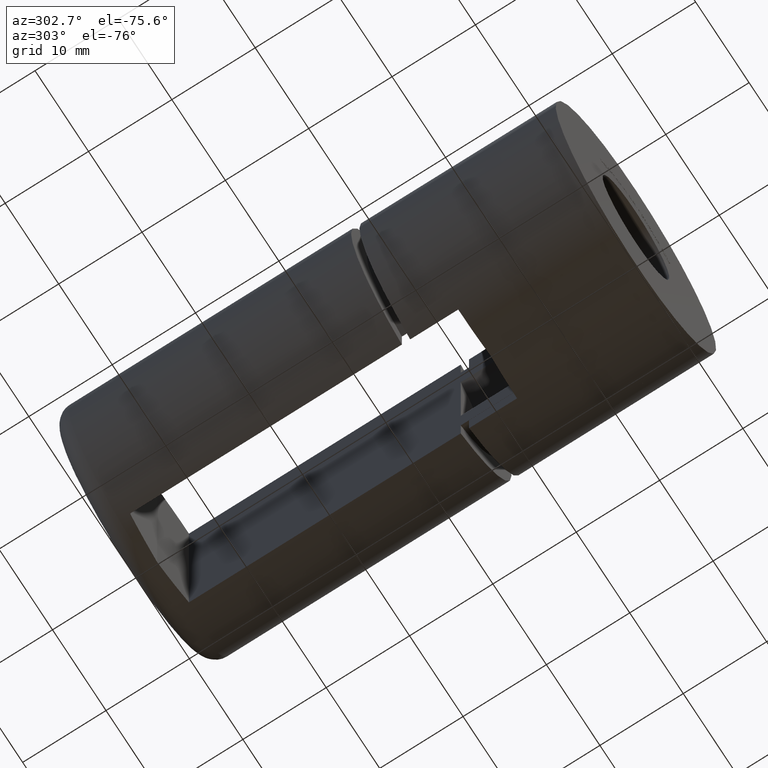
[diagram: clean part render]
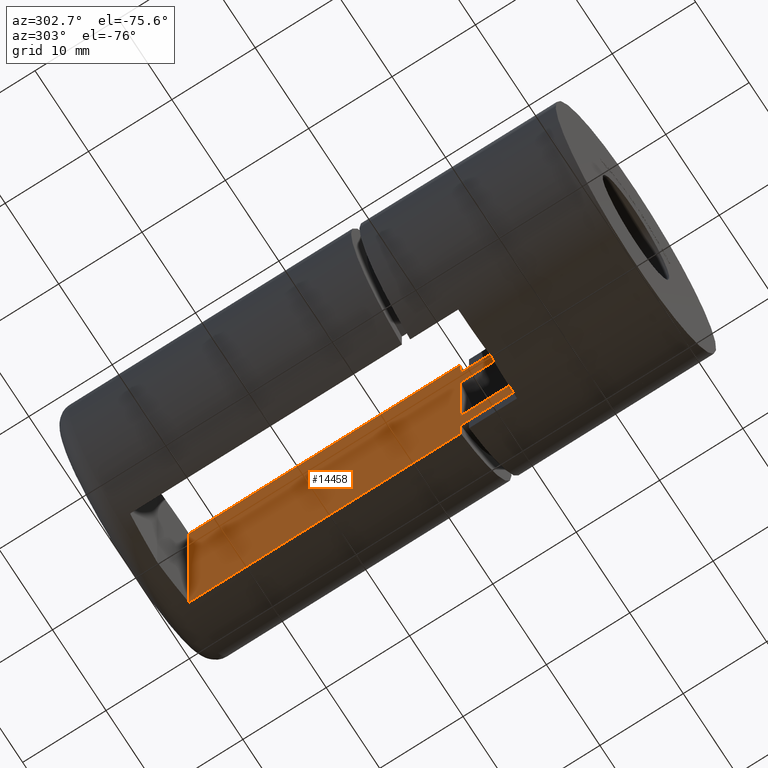
[diagram: same view with one face highlighted and labeled with its STEP entity id]
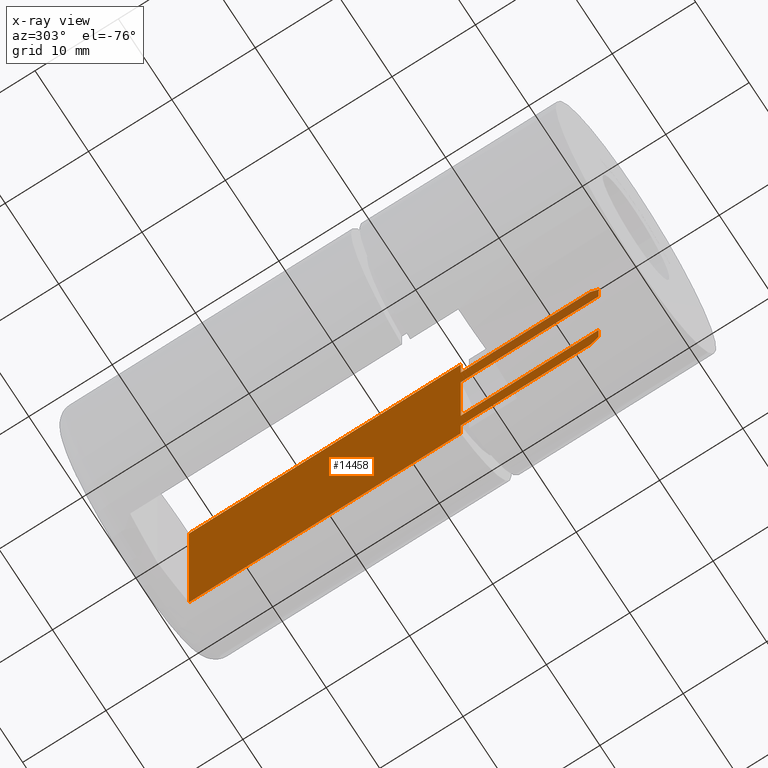
[diagram: x-ray of the same camera — body ghosted, the highlighted face saturated]
A machine part, auxiliary view. The second image highlights one B-rep face of the part: STEP entity #14458.
The next image is the same camera in x-ray: the body ghosted, the highlighted face saturated — about 5% of this face is hidden behind the body in this view.
In plain terms, the highlighted planar face has unit normal (1, 0, 0).
Its self-contained STEP definition (entity closure, byte-faithful):
#193 = EDGE_CURVE ( 'NONE', #15878, #3557, #1396, .T. ) ;
#316 = CARTESIAN_POINT ( 'NONE',  ( 5.500000000000000900, 52.94999999999998200, 10.72159036710506000 ) ) ;
#364 = ORIENTED_EDGE ( 'NONE', *, *, #16879, .T. ) ;
#634 = CARTESIAN_POINT ( 'NONE',  ( 5.500000000000000900, 12.65126265847082400, 6.805328794408102200 ) ) ;
#765 = CARTESIAN_POINT ( 'NONE',  ( 5.500000000000001800, 37.39999999999999900, -13.95528573695286300 ) ) ;
#824 = VECTOR ( 'NONE', #13019, 1000.000000000000000 ) ;
#977 = VECTOR ( 'NONE', #14602, 1000.000000000000000 ) ;
#1170 = EDGE_CURVE ( 'NONE', #2055, #12590, #11807, .T. ) ;
#1317 = AXIS2_PLACEMENT_3D ( 'NONE', #3475, #13930, #3239 ) ;
#1396 = LINE ( 'NONE', #9320, #977 ) ;
#1426 = CARTESIAN_POINT ( 'NONE',  ( 5.500000000000000000, 53.94999999999999600, -6.360652745248293000E-016 ) ) ;
#1438 = LINE ( 'NONE', #14080, #6279 ) ;
#1523 = CARTESIAN_POINT ( 'NONE',  ( 5.500000000000000900, 53.94999999999999600, 9.583970993278297700 ) ) ;
#1540 = DIRECTION ( 'NONE',  ( -0.0000000000000000000, -0.0000000000000000000, 1.000000000000000000 ) ) ;
#1621 = CARTESIAN_POINT ( 'NONE',  ( 5.500000000000001800, 37.39999999999999900, 13.95528573695286500 ) ) ;
#1640 = EDGE_CURVE ( 'NONE', #4953, #3020, #10446, .T. ) ;
#1713 = EDGE_LOOP ( 'NONE', ( #15666, #11776, #5054, #11476, #8399, #4805, #10479, #5165, #5842, #4507, #5970, #364, #10589, #1958 ) ) ;
#1765 = CARTESIAN_POINT ( 'NONE',  ( 5.500000000000000900, 53.94999999999999600, 6.805328794408102200 ) ) ;
#1767 = CARTESIAN_POINT ( 'NONE',  ( 5.500000000000000900, 53.94999999999999600, 9.583970993278297700 ) ) ;
#1891 = DIRECTION ( 'NONE',  ( -1.156482317317871500E-016, 0.0000000000000000000, -1.000000000000000000 ) ) ;
#1954 = DIRECTION ( 'NONE',  ( 0.0000000000000000000, -1.000000000000000000, 0.0000000000000000000 ) ) ;
#1958 = ORIENTED_EDGE ( 'NONE', *, *, #16105, .T. ) ;
#2055 = VERTEX_POINT ( 'NONE', #12382 ) ;
#2137 = EDGE_CURVE ( 'NONE', #4626, #5070, #15040, .T. ) ;
#2786 = CARTESIAN_POINT ( 'NONE',  ( 5.500000000000001800, 37.39999999999999900, -13.95528573695286300 ) ) ;
#2815 = EDGE_CURVE ( 'NONE', #8902, #12512, #15235, .T. ) ;
#2969 = CARTESIAN_POINT ( 'NONE',  ( 5.500000000000001800, 37.39999999999999900, -15.00000000000000000 ) ) ;
#3020 = VERTEX_POINT ( 'NONE', #10277 ) ;
#3239 = DIRECTION ( 'NONE',  ( -1.156482317317871500E-016, 0.0000000000000000000, -1.000000000000000000 ) ) ;
#3475 = CARTESIAN_POINT ( 'NONE',  ( 5.499999999999996400, -23.60000000000000900, -30.00000000000000400 ) ) ;
#3557 = VERTEX_POINT ( 'NONE', #12785 ) ;
#3605 = DIRECTION ( 'NONE',  ( -0.0000000000000000000, 1.000000000000000000, -0.0000000000000000000 ) ) ;
#4392 = DIRECTION ( 'NONE',  ( 1.156482317317871500E-016, -0.0000000000000000000, 1.000000000000000000 ) ) ;
#4507 = ORIENTED_EDGE ( 'NONE', *, *, #16001, .F. ) ;
#4542 = LINE ( 'NONE', #2969, #8314 ) ;
#4626 = VERTEX_POINT ( 'NONE', #14476 ) ;
#4805 = ORIENTED_EDGE ( 'NONE', *, *, #14190, .F. ) ;
#4953 = VERTEX_POINT ( 'NONE', #15378 ) ;
#5054 = ORIENTED_EDGE ( 'NONE', *, *, #1170, .T. ) ;
#5062 = LINE ( 'NONE', #15942, #5707 ) ;
#5070 = VERTEX_POINT ( 'NONE', #12144 ) ;
#5165 = ORIENTED_EDGE ( 'NONE', *, *, #2137, .T. ) ;
#5505 = DIRECTION ( 'NONE',  ( -0.0000000000000000000, -1.000000000000000000, -0.0000000000000000000 ) ) ;
#5707 = VECTOR ( 'NONE', #5505, 1000.000000000000000 ) ;
#5842 = ORIENTED_EDGE ( 'NONE', *, *, #15008, .F. ) ;
#5970 = ORIENTED_EDGE ( 'NONE', *, *, #1640, .F. ) ;
#6024 = VERTEX_POINT ( 'NONE', #2786 ) ;
#6186 = CARTESIAN_POINT ( 'NONE',  ( 5.500000000000000000, 53.94999999999999600, -6.360652745248293000E-016 ) ) ;
#6279 = VECTOR ( 'NONE', #3605, 1000.000000000000000 ) ;
#6548 = FACE_OUTER_BOUND ( 'NONE', #1713, .T. ) ;
#6628 = VERTEX_POINT ( 'NONE', #1523 ) ;
#6644 = CARTESIAN_POINT ( 'NONE',  ( 5.500000000000001800, 37.39999999999999900, -10.72159036710506200 ) ) ;
#6769 = CARTESIAN_POINT ( 'NONE',  ( 5.500000000000001800, 37.39999999999999900, -15.00000000000000000 ) ) ;
#6928 = VECTOR ( 'NONE', #16685, 1000.000000000000000 ) ;
#7164 = LINE ( 'NONE', #6769, #7591 ) ;
#7504 = CARTESIAN_POINT ( 'NONE',  ( 5.500000000000000900, 53.94999999999999600, 10.72159036710506000 ) ) ;
#7591 = VECTOR ( 'NONE', #1540, 1000.000000000000000 ) ;
#7614 = LINE ( 'NONE', #6186, #10085 ) ;
#7858 = VECTOR ( 'NONE', #8555, 1000.000000000000000 ) ;
#8314 = VECTOR ( 'NONE', #16356, 1000.000000000000000 ) ;
#8389 = CARTESIAN_POINT ( 'NONE',  ( 5.499999999999996400, 37.39999999999999900, -30.00000000000000400 ) ) ;
#8399 = ORIENTED_EDGE ( 'NONE', *, *, #193, .F. ) ;
#8555 = DIRECTION ( 'NONE',  ( -1.156482317317871500E-016, 0.0000000000000000000, -1.000000000000000000 ) ) ;
#8812 = VERTEX_POINT ( 'NONE', #1621 ) ;
#8902 = VERTEX_POINT ( 'NONE', #14930 ) ;
#8934 = VERTEX_POINT ( 'NONE', #1765 ) ;
#9320 = CARTESIAN_POINT ( 'NONE',  ( 5.499999999999999100, 53.94999999999999600, -10.72159036710506000 ) ) ;
#9762 = CARTESIAN_POINT ( 'NONE',  ( 5.500000000000000900, 53.61918428849094200, 9.965390512884408000 ) ) ;
#10085 = VECTOR ( 'NONE', #1891, 1000.000000000000000 ) ;
#10098 = DIRECTION ( 'NONE',  ( 0.0000000000000000000, 1.000000000000000000, 0.0000000000000000000 ) ) ;
#10277 = CARTESIAN_POINT ( 'NONE',  ( 5.500000000000001800, 37.39999999999999900, 10.72159036710506200 ) ) ;
#10328 = CARTESIAN_POINT ( 'NONE',  ( 5.500000000000005300, 4.788242786056748000, -15.00000000000000000 ) ) ;
#10446 = LINE ( 'NONE', #7504, #6928 ) ;
#10479 = ORIENTED_EDGE ( 'NONE', *, *, #15114, .F. ) ;
#10589 = ORIENTED_EDGE ( 'NONE', *, *, #14325, .T. ) ;
#11476 = ORIENTED_EDGE ( 'NONE', *, *, #16224, .T. ) ;
#11478 = PLANE ( 'NONE',  #1317 ) ;
#11545 = LINE ( 'NONE', #765, #15537 ) ;
#11776 = ORIENTED_EDGE ( 'NONE', *, *, #12374, .T. ) ;
#11807 = LINE ( 'NONE', #1426, #7858 ) ;
#12144 = CARTESIAN_POINT ( 'NONE',  ( 5.500000000000005300, 4.788242786056748000, 13.95528573695285800 ) ) ;
#12374 = EDGE_CURVE ( 'NONE', #8902, #2055, #1438, .T. ) ;
#12382 = CARTESIAN_POINT ( 'NONE',  ( 5.499999999999999100, 53.94999999999999600, -6.805328794408104000 ) ) ;
#12512 = VERTEX_POINT ( 'NONE', #15917 ) ;
#12590 = VERTEX_POINT ( 'NONE', #14531 ) ;
#12785 = CARTESIAN_POINT ( 'NONE',  ( 5.499999999999999100, 52.94999999999998200, -10.72159036710506000 ) ) ;
#12983 = VECTOR ( 'NONE', #1954, 1000.000000000000000 ) ;
#13019 = DIRECTION ( 'NONE',  ( -0.0000000000000000000, -0.0000000000000000000, 1.000000000000000000 ) ) ;
#13134 = CARTESIAN_POINT ( 'NONE',  ( 5.499999999999999100, 53.61918428849094200, -9.965390512884408000 ) ) ;
#13930 = DIRECTION ( 'NONE',  ( 1.000000000000000000, 0.0000000000000000000, -1.156482317317871500E-016 ) ) ;
#13970 = B_SPLINE_CURVE_WITH_KNOTS ( 'NONE', 3,
 ( #17168, #13134, #14430, #15819 ),
 .UNSPECIFIED., .F., .F.,
 ( 4, 4 ),
 ( 1.734723475976807100E-018, 0.001514654363115894800 ),
 .UNSPECIFIED. ) ;
#14080 = CARTESIAN_POINT ( 'NONE',  ( 5.499999999999999100, 12.65126265847082400, -6.805328794408104000 ) ) ;
#14190 = EDGE_CURVE ( 'NONE', #6024, #15878, #4542, .T. ) ;
#14325 = EDGE_CURVE ( 'NONE', #6628, #8934, #7614, .T. ) ;
#14430 = CARTESIAN_POINT ( 'NONE',  ( 5.499999999999999100, 53.28561648060672000, -10.34439086098336200 ) ) ;
#14458 = ADVANCED_FACE ( 'NONE', ( #6548 ), #11478, .F. ) ;
#14476 = CARTESIAN_POINT ( 'NONE',  ( 5.500000000000005300, 4.788242786056748000, -13.95528573695286500 ) ) ;
#14531 = CARTESIAN_POINT ( 'NONE',  ( 5.499999999999999100, 53.94999999999999600, -9.583970993278295900 ) ) ;
#14602 = DIRECTION ( 'NONE',  ( 0.0000000000000000000, 1.000000000000000000, 0.0000000000000000000 ) ) ;
#14930 = CARTESIAN_POINT ( 'NONE',  ( 5.499999999999999100, 37.39999999999999900, -6.805328794408104000 ) ) ;
#15008 = EDGE_CURVE ( 'NONE', #8812, #5070, #5062, .T. ) ;
#15040 = LINE ( 'NONE', #10328, #824 ) ;
#15106 = CARTESIAN_POINT ( 'NONE',  ( 5.500000000000000900, 53.28561648060672000, 10.34439086098336200 ) ) ;
#15114 = EDGE_CURVE ( 'NONE', #4626, #6024, #11545, .T. ) ;
#15235 = LINE ( 'NONE', #8389, #17100 ) ;
#15378 = CARTESIAN_POINT ( 'NONE',  ( 5.500000000000000900, 52.94999999999998200, 10.72159036710506000 ) ) ;
#15537 = VECTOR ( 'NONE', #10098, 1000.000000000000000 ) ;
#15666 = ORIENTED_EDGE ( 'NONE', *, *, #2815, .F. ) ;
#15819 = CARTESIAN_POINT ( 'NONE',  ( 5.499999999999999100, 52.94999999999998200, -10.72159036710506000 ) ) ;
#15878 = VERTEX_POINT ( 'NONE', #6644 ) ;
#15917 = CARTESIAN_POINT ( 'NONE',  ( 5.500000000000000900, 37.39999999999999900, 6.805328794408102200 ) ) ;
#15942 = CARTESIAN_POINT ( 'NONE',  ( 5.500000000000001800, 37.39999999999999900, 13.95528573695286300 ) ) ;
#16001 = EDGE_CURVE ( 'NONE', #3020, #8812, #7164, .T. ) ;
#16082 = B_SPLINE_CURVE_WITH_KNOTS ( 'NONE', 3,
 ( #316, #15106, #9762, #1767 ),
 .UNSPECIFIED., .F., .F.,
 ( 4, 4 ),
 ( 0.0000000000000000000, 0.001514654363115897400 ),
 .UNSPECIFIED. ) ;
#16105 = EDGE_CURVE ( 'NONE', #8934, #12512, #16955, .T. ) ;
#16224 = EDGE_CURVE ( 'NONE', #12590, #3557, #13970, .T. ) ;
#16356 = DIRECTION ( 'NONE',  ( -0.0000000000000000000, -0.0000000000000000000, 1.000000000000000000 ) ) ;
#16685 = DIRECTION ( 'NONE',  ( -0.0000000000000000000, -1.000000000000000000, -0.0000000000000000000 ) ) ;
#16879 = EDGE_CURVE ( 'NONE', #4953, #6628, #16082, .T. ) ;
#16955 = LINE ( 'NONE', #634, #12983 ) ;
#17100 = VECTOR ( 'NONE', #4392, 1000.000000000000000 ) ;
#17168 = CARTESIAN_POINT ( 'NONE',  ( 5.499999999999999100, 53.94999999999999600, -9.583970993278295900 ) ) ;